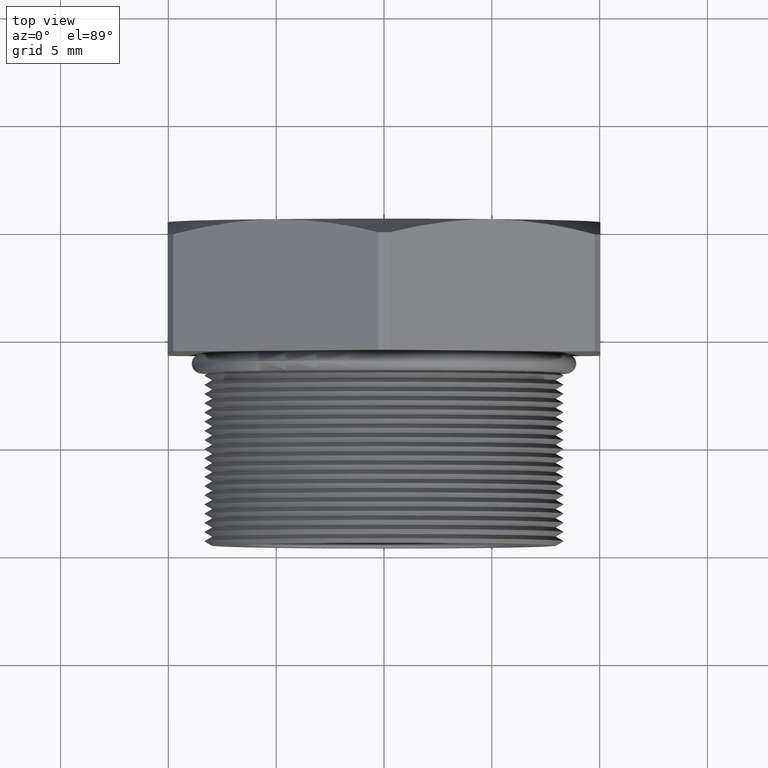
[diagram: clean part render]
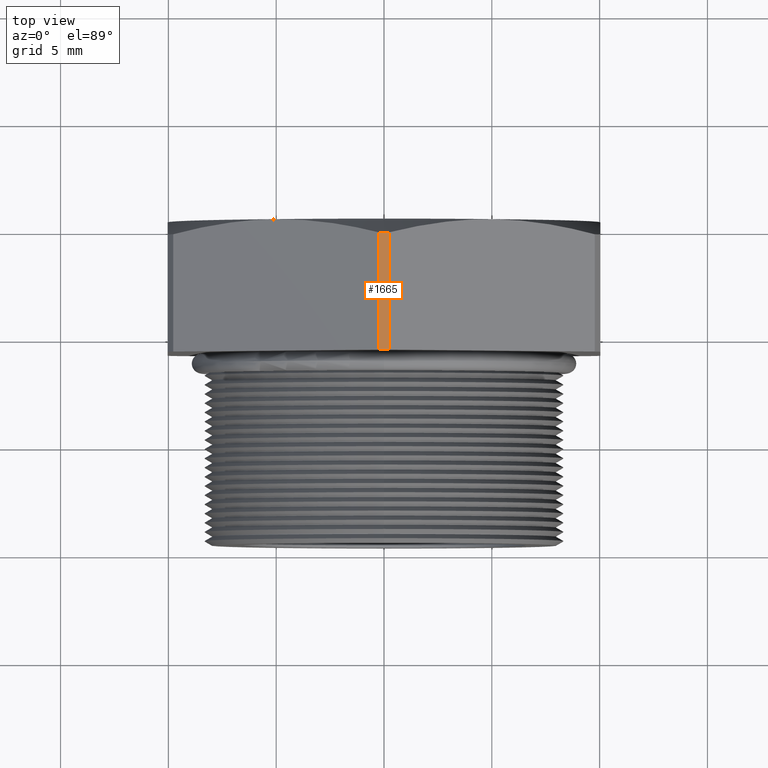
[diagram: same view with one face highlighted and labeled with its STEP entity id]
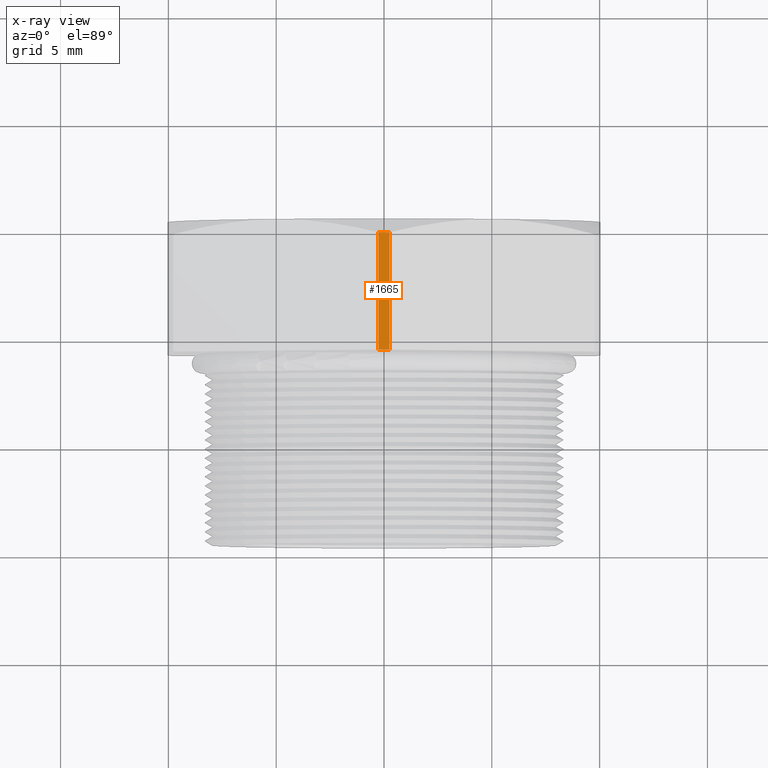
[diagram: x-ray of the same camera — body ghosted, the highlighted face saturated]
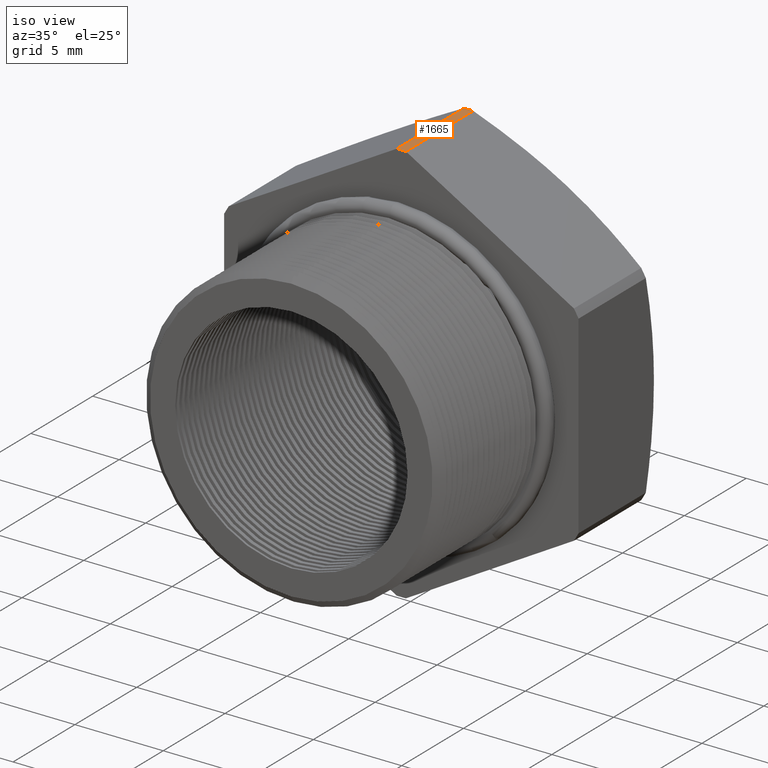
[diagram: same view with one face highlighted and labeled with its STEP entity id]
A machine part, top view. The second image highlights one B-rep face of the part: STEP entity #1665.
The next image is the same camera in x-ray: the body ghosted, the highlighted face saturated — about 0% of this face is hidden behind the body in this view.
A second angle (iso view) of the same face is appended — the face is thin or edge-on in the first view.
In plain terms, the highlighted cylindrical surface (partial cylindrical patch) has radius 11.4376 mm, axis along (-0, -1, -0).
Its self-contained STEP definition (entity closure, byte-faithful):
#1649 = VERTEX_POINT ( 'NONE', #4893 ) ;
#1650 = ORIENTED_EDGE ( 'NONE', *, *, #1651, .F. ) ;
#1651 = EDGE_CURVE ( 'NONE', #1669, #1649, #4888, .T. ) ;
#1665 = ADVANCED_FACE ( 'NONE', ( #4916 ), #4915, .T. ) ;
#1666 = EDGE_LOOP ( 'NONE', ( #1667, #1670, #1671, #1731, #1650 ) ) ;
#1667 = ORIENTED_EDGE ( 'NONE', *, *, #1668, .T. ) ;
#1668 = EDGE_CURVE ( 'NONE', #1669, #8991, #4967, .T. ) ;
#1669 = VERTEX_POINT ( 'NONE', #4963 ) ;
#1670 = ORIENTED_EDGE ( 'NONE', *, *, #9002, .T. ) ;
#1671 = ORIENTED_EDGE ( 'NONE', *, *, #1672, .T. ) ;
#1672 = EDGE_CURVE ( 'NONE', #8987, #1730, #4962, .T. ) ;
#1730 = VERTEX_POINT ( 'NONE', #5090 ) ;
#1731 = ORIENTED_EDGE ( 'NONE', *, *, #1732, .T. ) ;
#1732 = EDGE_CURVE ( 'NONE', #1730, #1649, #5084, .T. ) ;
#4884 = DIRECTION ( 'NONE',  ( 0.0000000000000000000, 0.0000000000000000000, -1.000000000000000000 ) ) ;
#4885 = DIRECTION ( 'NONE',  ( -0.0000000000000000000, -1.000000000000000000, -0.0000000000000000000 ) ) ;
#4886 = CARTESIAN_POINT ( 'NONE',  ( 0.0000000000000000000, 0.1675548905829479500, 0.0000000000000000000 ) ) ;
#4887 = AXIS2_PLACEMENT_3D ( 'NONE', #4886, #4885, #4884 ) ;
#4888 = CIRCLE ( 'NONE', #4887, 0.4502999999999999800 ) ;
#4893 = CARTESIAN_POINT ( 'NONE',  ( -0.01026000026703719400, 0.1675548905829479500, 0.4501830987437449000 ) ) ;
#4912 = DIRECTION ( 'NONE',  ( -0.0000000000000000000, -1.000000000000000000, -0.0000000000000000000 ) ) ;
#4913 = CARTESIAN_POINT ( 'NONE',  ( 0.0000000000000000000, 0.0000000000000000000, 0.0000000000000000000 ) ) ;
#4914 = AXIS2_PLACEMENT_3D ( 'NONE', #4913, #4912, #4968 ) ;
#4915 = CYLINDRICAL_SURFACE ( 'NONE', #4914, 0.4502999999999999800 ) ;
#4916 = FACE_OUTER_BOUND ( 'NONE', #1666, .T. ) ;
#4958 = DIRECTION ( 'NONE',  ( 0.0000000000000000000, 0.0000000000000000000, -1.000000000000000000 ) ) ;
#4959 = DIRECTION ( 'NONE',  ( 0.0000000000000000000, -1.000000000000000000, 0.0000000000000000000 ) ) ;
#4960 = CARTESIAN_POINT ( 'NONE',  ( 0.0000000000000000000, 0.3817680770869766300, 0.0000000000000000000 ) ) ;
#4961 = AXIS2_PLACEMENT_3D ( 'NONE', #4960, #4959, #4958 ) ;
#4962 = CIRCLE ( 'NONE', #4961, 0.4502999999999999800 ) ;
#4963 = CARTESIAN_POINT ( 'NONE',  ( 0.01026000026703746700, 0.1675548905829479500, 0.4501830987437449600 ) ) ;
#4964 = DIRECTION ( 'NONE',  ( 0.0000000000000000000, 1.000000000000000000, 0.0000000000000000000 ) ) ;
#4965 = VECTOR ( 'NONE', #4964, 39.37007874015748100 ) ;
#4966 = CARTESIAN_POINT ( 'NONE',  ( 0.01026000026703756900, 0.0000000000000000000, 0.4501830987437449000 ) ) ;
#4967 = LINE ( 'NONE', #4966, #4965 ) ;
#4968 = DIRECTION ( 'NONE',  ( 0.0000000000000000000, 0.0000000000000000000, -1.000000000000000000 ) ) ;
#5081 = DIRECTION ( 'NONE',  ( -0.0000000000000000000, -1.000000000000000000, -0.0000000000000000000 ) ) ;
#5082 = VECTOR ( 'NONE', #5081, 39.37007874015748100 ) ;
#5083 = CARTESIAN_POINT ( 'NONE',  ( -0.01026000026703719400, 0.0000000000000000000, 0.4501830987437449000 ) ) ;
#5084 = LINE ( 'NONE', #5083, #5082 ) ;
#5090 = CARTESIAN_POINT ( 'NONE',  ( -0.01026000026703719400, 0.3817680770869766300, 0.4501830987437449000 ) ) ;
#7513 = DIRECTION ( 'NONE',  ( 0.0000000000000000000, 0.0000000000000000000, -1.000000000000000000 ) ) ;
#7514 = DIRECTION ( 'NONE',  ( 0.0000000000000000000, -1.000000000000000000, 0.0000000000000000000 ) ) ;
#7515 = CARTESIAN_POINT ( 'NONE',  ( 0.0000000000000000000, 0.3817680770869766300, 0.0000000000000000000 ) ) ;
#7516 = AXIS2_PLACEMENT_3D ( 'NONE', #7515, #7514, #7513 ) ;
#7517 = CIRCLE ( 'NONE', #7516, 0.4502999999999999800 ) ;
#7534 = CARTESIAN_POINT ( 'NONE',  ( 0.01026000026703751200, 0.3817680770869766900, 0.4501830987437447900 ) ) ;
#7537 = CARTESIAN_POINT ( 'NONE',  ( 0.0000000000000000000, 0.3817680770869766300, 0.4502999999999999800 ) ) ;
#8987 = VERTEX_POINT ( 'NONE', #7537 ) ;
#8991 = VERTEX_POINT ( 'NONE', #7534 ) ;
#9002 = EDGE_CURVE ( 'NONE', #8991, #8987, #7517, .T. ) ;